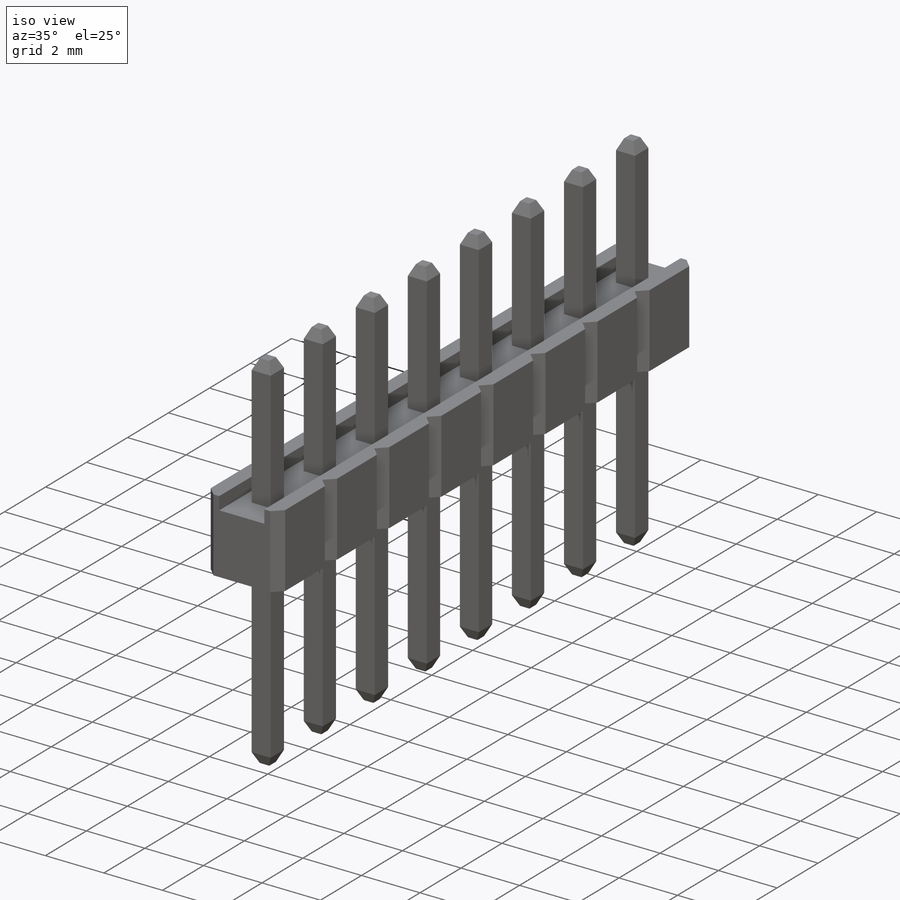
[diagram: iso view]
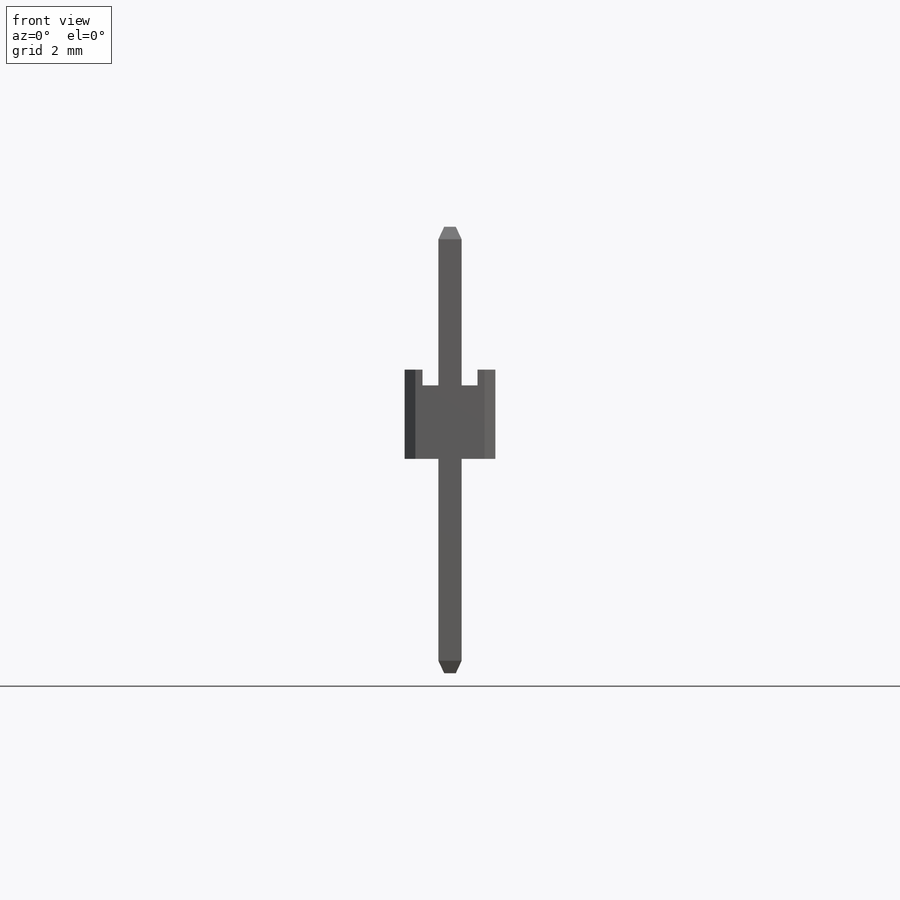
[diagram: front view]
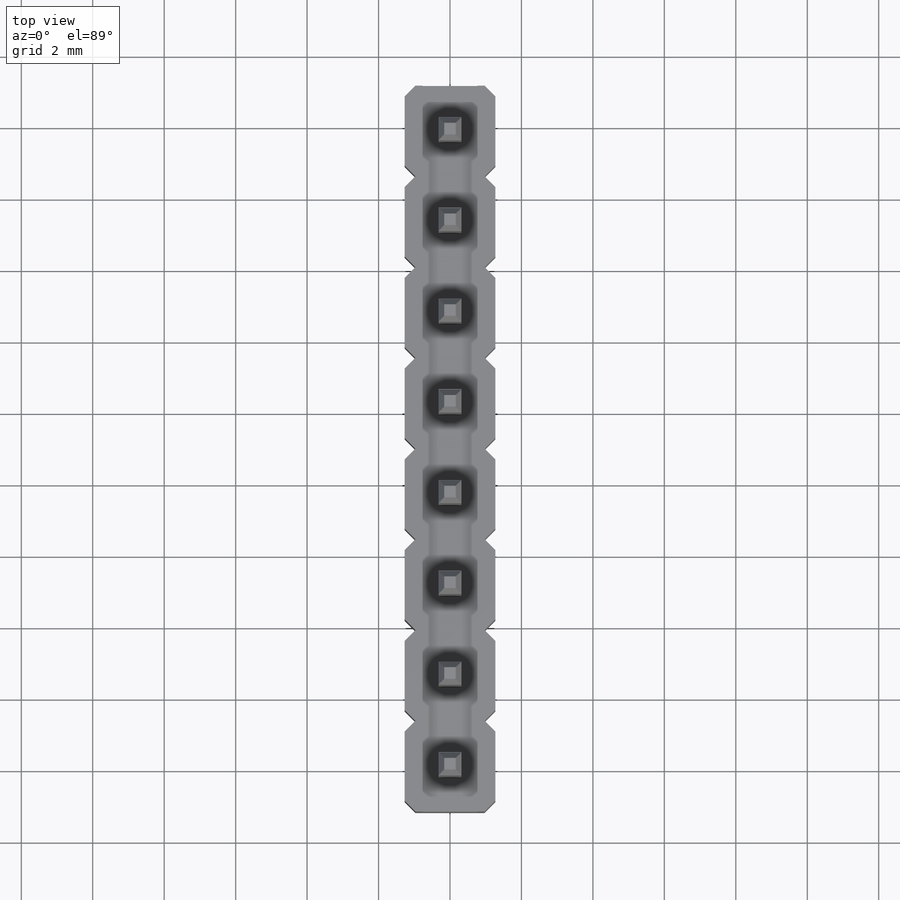
[diagram: top view]
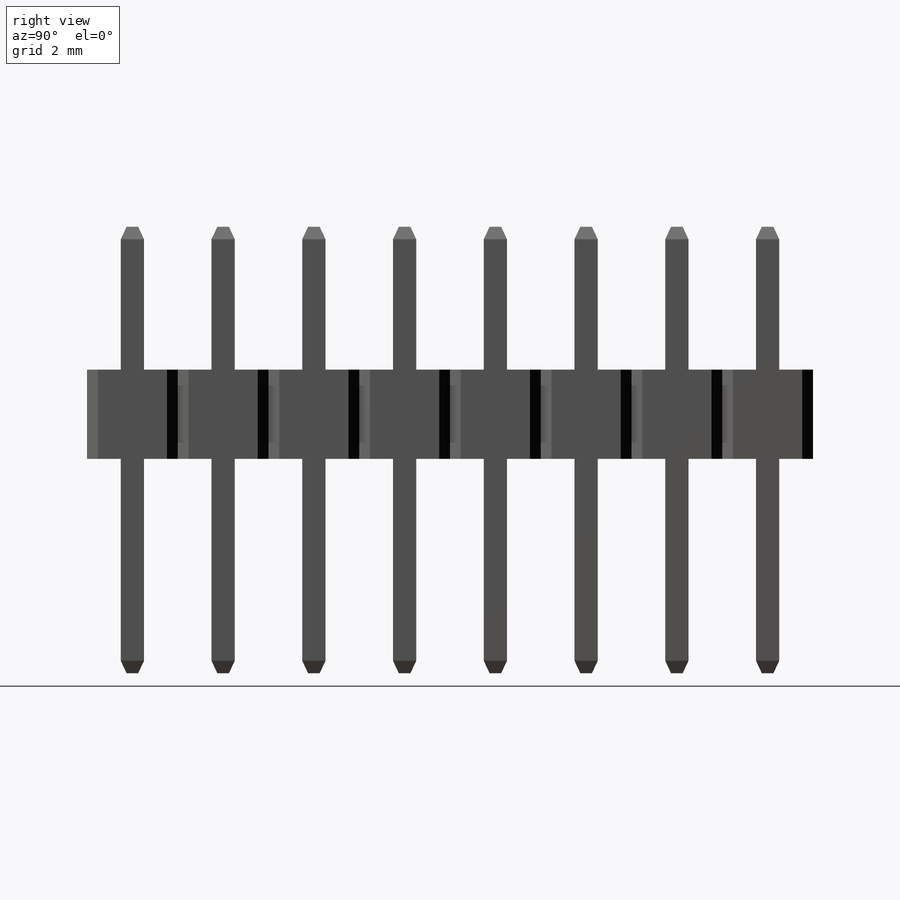
[diagram: right view]
SOLIDWORKS PART (.sldprt)
format: sldprt  version: not decoded by parser v0  size: 530,944 bytes
history: native  units: mm
features: extrude x7, sketch x4, cut_extrude x4, chamfer x2, pattern_linear x2, material x1 (+12 scaffold rows collapsed)
feature tree (32):
  scaffold x12  (default folders/planes/origin — collapsed)
  material  "Material <not specified>"
  sketch  "Sketch1"  dims[D1=2.54mm D2=1.27mm D3=2.54mm D4=1.27mm D5=0.97mm D6=0.97mm D7=0.97mm D8=0.97mm]
  extrude  "Extrude1"  Depth=2.5mm
  sketch  "Sketch2"  dims[D1=0.77mm D2=0.77mm D3=2.06mm]
  cut_extrude  "Cut-Extrude1"  Depth=12.5mm
  sketch  "Sketch3"  dims[D1=0.65mm D2=0.325mm D3=0.65mm D4=0.325mm]
  extrude  "Extrude2"  [1 undecoded]
  extrude  "PW2_UID_val"  Depth=4.44mm
  chamfer  "Chamfer1"  [1 undecoded]
  cut_extrude  "pw2 (2)"  [1 undecoded]
  extrude  "PW2_UID_val"  Depth=0.35mm
  sketch  "Sketch4"
  extrude  "Extrude3"  [1 undecoded]
  cut_extrude  "pw2 (3)"  [1 undecoded]
  extrude  "PW2_UID_val"  Depth=6mm
  chamfer  "Chamfer2"  [1 undecoded]
  cut_extrude  "pw2 (4)"  [1 undecoded]
  extrude  "PW2_UID_val"  Depth=0.35mm
  pattern_linear  "Padrão linear1"  Count1=8 Count2=1 Spacing1=2.54mm Spacing2=10mm
  pattern_linear  "Padrão linear2"  Count1=8 Count2=1 Spacing1=2.54mm Spacing2=10mm
decode coverage: 11 of 19 modeling features carry decoded parameters
note: 7 parameter values undecoded
summary: no parameter record found for 7 features
note: suppression state not decoded; provenance and decode notes live in map.json
